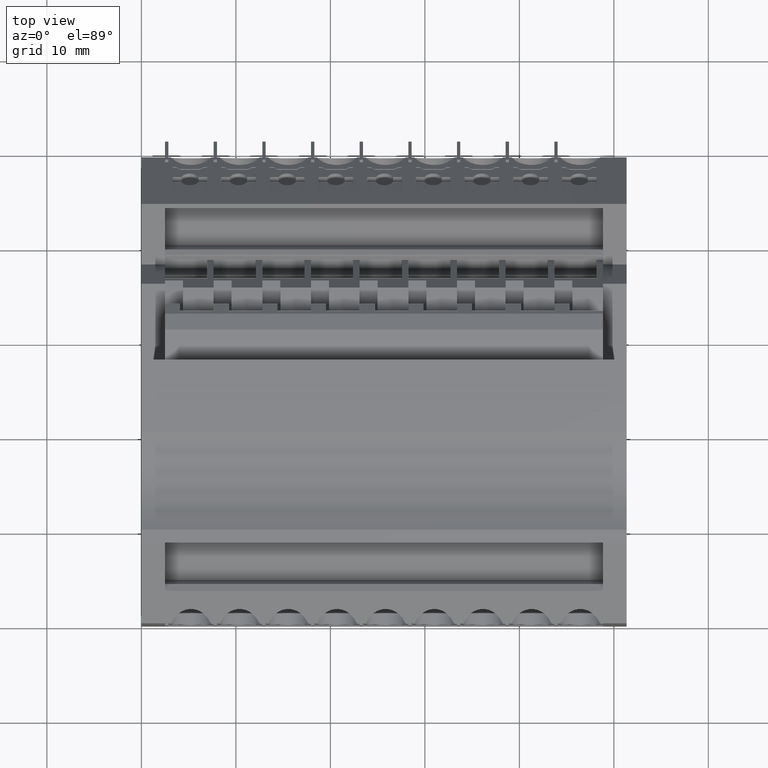
[diagram: clean part render]
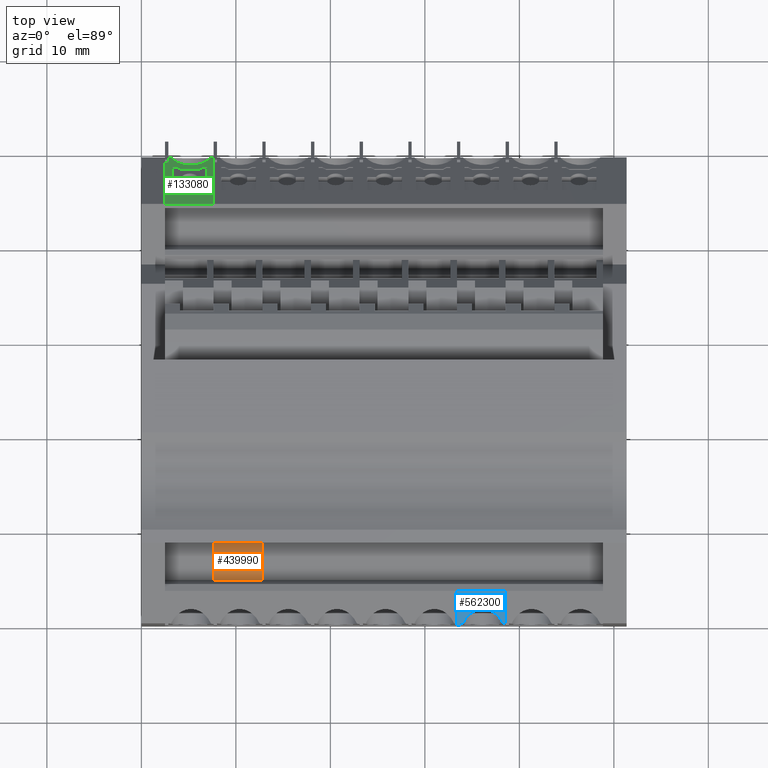
[diagram: same view with three faces highlighted in distinct colors, each labeled with its STEP entity id]
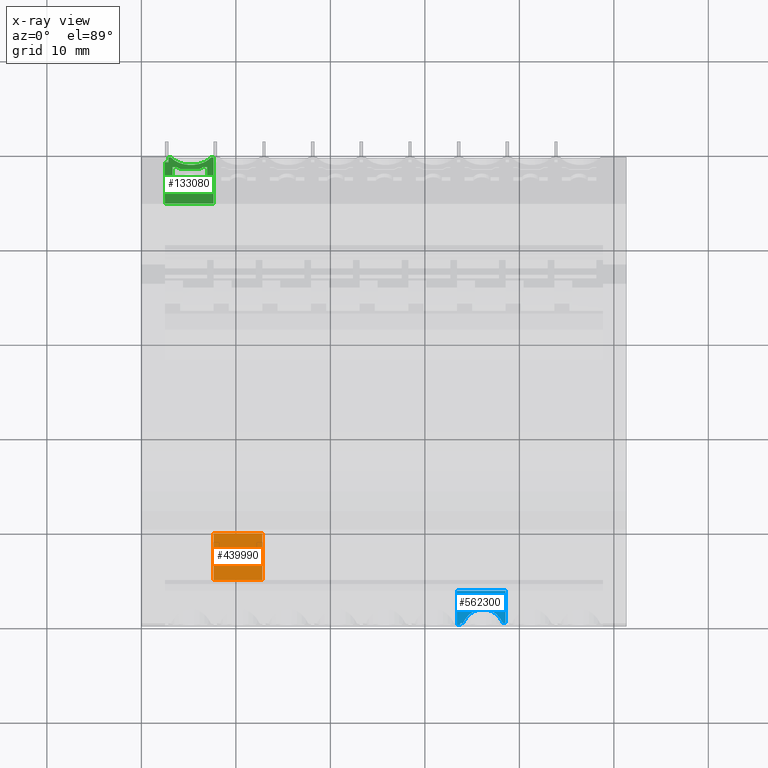
[diagram: x-ray of the same camera — body ghosted, the three highlighted faces saturated]
A machine part, top view with three faces highlighted in distinct colors.
The next image is the same camera in x-ray (body ghosted, the three faces saturated) — at least one of them is partly hidden behind the body in this view.
Their STEP definitions:

[orange] entity #439990 — the highlighted planar face has unit normal (-0, 0.6428, -0.766).
#57360=CARTESIAN_POINT('',(429.86212731812,696.188710113931,
85.2749975682599));
#57370=DIRECTION('',(0.642787609094791,-0.766044443615514,
2.68778616175774E-10));
#57380=DIRECTION('',(-0.766044443615514,-0.642787609094791,
4.43142362006131E-10));
#57390=AXIS2_PLACEMENT_3D('',#57360,#57370,#57380);
#57400=PLANE('',#57390);
#57410=CARTESIAN_POINT('',(425.016896212252,692.123078486407,
85.2749975710628));
#57420=DIRECTION('',(1.6669925506053E-10,4.90742847764455E-10,1.));
#57430=VECTOR('',#57420,1.);
#57440=LINE('',#57410,#57430);
#57590=CARTESIAN_POINT('',(429.86212731812,696.188710113931,
85.2749975682599));
#57600=DIRECTION('',(1.6669925506053E-10,4.90742847764455E-10,1.));
#57610=VECTOR('',#57600,1.);
#57620=LINE('',#57590,#57610);
#77810=CARTESIAN_POINT('',(429.862127316119,696.18871010804,
73.2699999848595));
#77820=VERTEX_POINT('',#77810);
#78240=CARTESIAN_POINT('',(425.016896210251,692.123078480515,
73.2699999876232));
#78250=VERTEX_POINT('',#78240);
#107680=CARTESIAN_POINT('',(425.016896211109,692.123078483043,
78.4199999876233));
#107690=VERTEX_POINT('',#107680);
#107720=CARTESIAN_POINT('',(419.450735291259,687.45251491545,
78.4199999907981));
#107730=DIRECTION('',(-0.766044443615514,-0.642787609094791,
4.36950297750633E-10));
#107740=VECTOR('',#107730,1.);
#107750=LINE('',#107720,#107740);
#107760=CARTESIAN_POINT('',(429.862127316978,696.188710110567,
78.4199999848595));
#107770=VERTEX_POINT('',#107760);
#107780=EDGE_CURVE('',#107770,#107690,#107750,.T.);
#131250=CARTESIAN_POINT('',(419.450735291008,687.452514913433,
73.2699999907982));
#131260=DIRECTION('',(-0.766044443615514,-0.642787609094791,
4.36950297750633E-10));
#131270=VECTOR('',#131260,1.);
#131280=LINE('',#131250,#131270);
#131290=EDGE_CURVE('',#77820,#78250,#131280,.T.);
#392960=EDGE_CURVE('',#77820,#107770,#57620,.T.);
#439920=EDGE_CURVE('',#78250,#107690,#57440,.T.);
#439930=ORIENTED_EDGE('',*,*,#439920,.T.);
#439940=ORIENTED_EDGE('',*,*,#131290,.T.);
#439950=ORIENTED_EDGE('',*,*,#392960,.F.);
#439960=ORIENTED_EDGE('',*,*,#107780,.F.);
#439970=EDGE_LOOP('',(#439960,#439950,#439940,#439930));
#439980=FACE_OUTER_BOUND('',#439970,.T.);
#439990=ADVANCED_FACE('',(#439980),#57400,.F.);

[blue] entity #562300 — the highlighted planar face has unit normal (-0, -0.6428, 0.766).
#23650=CARTESIAN_POINT('',(420.453158781506,690.486358046832,
99.0199999889429));
#23660=VERTEX_POINT('',#23650);
#80380=CARTESIAN_POINT('',(423.8508749517,693.337380410128,
88.71999998123));
#80390=DIRECTION('',(3.57317305807404E-11,5.38411128446248E-10,1.));
#80400=VECTOR('',#80390,1.);
#80410=LINE('',#80380,#80400);
#205300=CARTESIAN_POINT('',(423.850874952252,693.337380418446,
104.169999987005));
#205310=VERTEX_POINT('',#205300);
#205340=CARTESIAN_POINT('',(423.850874952068,693.337380415673,
99.0199999870048));
#205350=VERTEX_POINT('',#205340);
#205360=EDGE_CURVE('',#205350,#205310,#80410,.T.);
#212410=CARTESIAN_POINT('',(422.138206571203,691.900281005658,
73.2699999865796));
#212420=DIRECTION('',(-0.642787607836916,0.766044444670996,
-3.89478801783717E-10));
#212430=DIRECTION('',(0.766044444670996,0.642787607836916,
-4.25146305308343E-10));
#212440=AXIS2_PLACEMENT_3D('',#212410,#212420,#212430);
#212450=PLANE('',#212440);
#218160=CARTESIAN_POINT('',(420.453158781253,690.486358049238,
104.169999988943));
#218170=VERTEX_POINT('',#218160);
#218200=CARTESIAN_POINT('',(418.258461686124,688.6447885352,
104.169999990195));
#218210=DIRECTION('',(0.766044444670996,0.642787607836916,
-4.36950296813667E-10));
#218220=VECTOR('',#218210,1.);
#218230=LINE('',#218200,#218220);
#226030=EDGE_CURVE('',#218170,#205310,#218230,.T.);
#306980=CARTESIAN_POINT('',(420.253158784285,690.318538124487,
99.3699999790003));
#306990=VERTEX_POINT('',#306980);
#307020=CARTESIAN_POINT('',(418.258461685737,688.644788533473,
99.3699999796383));
#307030=DIRECTION('',(-0.76604444476172,-0.642787607728796,
2.45000771014581E-10));
#307040=VECTOR('',#307030,1.);
#307050=LINE('',#307020,#307040);
#307060=CARTESIAN_POINT('',(420.453158779868,690.486358046145,
99.3699999789363));
#307070=VERTEX_POINT('',#307060);
#307080=EDGE_CURVE('',#307070,#306990,#307050,.T.);
#353900=CARTESIAN_POINT('',(420.453158779363,690.486358048857,
103.875444735563));
#353910=VERTEX_POINT('',#353900);
#353940=CARTESIAN_POINT('',(420.453158779829,690.486358045935,
99.0199999823949));
#353950=DIRECTION('',(-1.11377720218254E-10,-6.01885650121683E-10,-1.));
#353960=VECTOR('',#353950,1.);
#353970=LINE('',#353940,#353960);
#353980=EDGE_CURVE('',#218170,#353910,#353970,.T.);
#427250=CARTESIAN_POINT('',(418.258461686315,688.644788532742,
99.0199999901948));
#427260=DIRECTION('',(0.766044444670996,0.642787607836916,
-4.36950296813667E-10));
#427270=VECTOR('',#427260,1.);
#427280=LINE('',#427250,#427270);
#427290=CARTESIAN_POINT('',(420.253158784317,690.318538124336,
99.0199999890569));
#427300=VERTEX_POINT('',#427290);
#427310=EDGE_CURVE('',#427300,#23660,#427280,.T.);
#512450=CARTESIAN_POINT('',(420.453158779594,690.486358046323,
99.6645552188706));
#512460=VERTEX_POINT('',#512450);
#512490=CARTESIAN_POINT('',(419.080259479938,689.33435875713,
101.769999977835));
#512500=DIRECTION('',(-0.642787607728796,0.76604444476172,
-3.89479239555093E-10));
#512510=DIRECTION('',(0.76604444476172,0.642787607728796,
-2.55276932474438E-10));
#512520=AXIS2_PLACEMENT_3D('',#512490,#512500,#512510);
#512530=ELLIPSE('',#512520,3.73373718971238,2.40000000000534);
#512540=EDGE_CURVE('',#353910,#512460,#512530,.T.);
#536910=EDGE_CURVE('',#23660,#205350,#427280,.T.);
#562130=ORIENTED_EDGE('',*,*,#205360,.F.);
#562140=ORIENTED_EDGE('',*,*,#226030,.T.);
#562150=ORIENTED_EDGE('',*,*,#353980,.F.);
#562160=ORIENTED_EDGE('',*,*,#512540,.F.);
#562170=EDGE_CURVE('',#512460,#307070,#353970,.T.);
#562180=ORIENTED_EDGE('',*,*,#562170,.F.);
#562190=ORIENTED_EDGE('',*,*,#307080,.F.);
#562200=CARTESIAN_POINT('',(420.253158784317,690.318538124336,
99.0199999824634));
#562210=DIRECTION('',(9.05318254705689E-11,-4.32463425682347E-10,-1.));
#562220=VECTOR('',#562210,1.);
#562230=LINE('',#562200,#562220);
#562240=EDGE_CURVE('',#306990,#427300,#562230,.T.);
#562250=ORIENTED_EDGE('',*,*,#562240,.F.);
#562260=ORIENTED_EDGE('',*,*,#427310,.F.);
#562270=ORIENTED_EDGE('',*,*,#536910,.F.);
#562280=EDGE_LOOP('',(#562270,#562260,#562250,#562190,#562180,#562160,
#562150,#562140,#562130));
#562290=FACE_OUTER_BOUND('',#562280,.T.);
#562300=ADVANCED_FACE('',(#562290),#212450,.T.);

[green] entity #133080 — the highlighted planar face has unit normal (-0, 0.766, 0.6428).
#10200=CARTESIAN_POINT('',(469.853158778639,686.448039185579,
68.1199999959026));
#10210=DIRECTION('',(1.66699254649708E-10,1.918782124309E-10,1.));
#10220=VECTOR('',#10210,1.);
#10230=LINE('',#10200,#10220);
#10240=CARTESIAN_POINT('',(469.853158778697,686.448039186222,
68.4699999824707));
#10250=VERTEX_POINT('',#10240);
#10260=CARTESIAN_POINT('',(469.853158778743,686.4480391857,
68.7472577237182));
#10270=VERTEX_POINT('',#10260);
#10280=EDGE_CURVE('',#10250,#10270,#10230,.T.);
#15740=CARTESIAN_POINT('',(469.853158782448,686.448039190721,
73.269999987393));
#15750=VERTEX_POINT('',#15740);
#15780=CARTESIAN_POINT('',(469.85315877818,686.448039186125,
68.1199999959026));
#15790=DIRECTION('',(9.53019264641259E-11,2.76966234926162E-10,1.));
#15800=VECTOR('',#15790,1.);
#15810=LINE('',#15780,#15800);
#15820=CARTESIAN_POINT('',(469.853158778645,686.448039187475,
72.9927422411771));
#15830=VERTEX_POINT('',#15820);
#15840=EDGE_CURVE('',#15830,#15750,#15810,.T.);
#19620=CARTESIAN_POINT('',(466.571603112913,690.35884494672,
71.4740249410919));
#19630=VERTEX_POINT('',#19620);
#19780=CARTESIAN_POINT('',(466.2823488394,690.703564767049,
71.9240247065237));
#19790=VERTEX_POINT('',#19780);
#19820=CARTESIAN_POINT('',(468.727528790394,687.789512770027,
68.1199999949033));
#19830=DIRECTION('',(0.454519477349067,-0.541675221128777,
-0.70710678085097));
#19840=VECTOR('',#19830,1.);
#19850=LINE('',#19820,#19840);
#19860=EDGE_CURVE('',#19790,#19630,#19850,.T.);
#47390=CARTESIAN_POINT('',(466.282348839329,690.703564767386,
72.5700004247088));
#47400=VERTEX_POINT('',#47390);
#47830=CARTESIAN_POINT('',(468.789220513856,687.715991438584,
72.5700004264913));
#47840=VERTEX_POINT('',#47830);
#47870=CARTESIAN_POINT('',(460.057092098218,698.122536864627,
72.5700004202823));
#47880=DIRECTION('',(-0.642787609117033,0.766044443596851,
-4.570555116598E-10));
#47890=VECTOR('',#47880,1.);
#47900=LINE('',#47870,#47890);
#47910=EDGE_CURVE('',#47840,#47400,#47900,.T.);
#131660=CARTESIAN_POINT('',(480.967221274263,673.202815271583,
73.2699999869654));
#131670=DIRECTION('',(0.766044443506127,0.642787609225153,
-6.26829308777775E-10));
#131680=DIRECTION('',(0.642787609225154,-0.766044443506128,
3.53694291000708E-10));
#131690=AXIS2_PLACEMENT_3D('',#131660,#131670,#131680);
#131700=PLANE('',#131690);
#131710=CARTESIAN_POINT('',(469.319520311842,687.08400474649,
68.1199999954288));
#131720=DIRECTION('',(-5.86570307982182E-11,4.60447375632641E-10,1.));
#131730=VECTOR('',#131720,1.);
#131740=LINE('',#131710,#131730);
#131750=CARTESIAN_POINT('',(469.319520315897,687.084004746136,
68.1199999870631));
#131760=VERTEX_POINT('',#131750);
#131770=CARTESIAN_POINT('',(469.319520311822,687.084004746652,
68.469999982205));
#131780=VERTEX_POINT('',#131770);
#131790=EDGE_CURVE('',#131760,#131780,#131740,.T.);
#131800=ORIENTED_EDGE('',*,*,#131790,.F.);
#131810=CARTESIAN_POINT('',(460.057092098931,698.122536862176,
68.4699999775921));
#131820=DIRECTION('',(0.642787609117033,-0.766044443596851,
3.2011394940328E-10));
#131830=VECTOR('',#131820,1.);
#131840=LINE('',#131810,#131830);
#131850=EDGE_CURVE('',#131780,#10250,#131840,.T.);
#131860=ORIENTED_EDGE('',*,*,#131850,.F.);
#131870=ORIENTED_EDGE('',*,*,#10280,.F.);
#131880=CARTESIAN_POINT('',(470.572956149995,685.590218082104,
70.869999982823));
#131890=DIRECTION('',(-0.766044443609541,-0.642787609101909,
4.36973645764363E-10));
#131900=DIRECTION('',(-0.642787609101909,0.766044443609542,
-3.23562025759873E-10));
#131910=AXIS2_PLACEMENT_3D('',#131880,#131890,#131900);
#131920=CIRCLE('',#131910,2.40000000000534);
#131930=EDGE_CURVE('',#15830,#10270,#131920,.T.);
#131940=ORIENTED_EDGE('',*,*,#131930,.T.);
#131950=ORIENTED_EDGE('',*,*,#15840,.F.);
#131960=CARTESIAN_POINT('',(460.05709210007,698.122536867018,
73.2699999813353));
#131970=DIRECTION('',(0.642787609225153,-0.766044443506128,
3.97483338039747E-10));
#131980=VECTOR('',#131970,1.);
#131990=LINE('',#131960,#131980);
#132000=CARTESIAN_POINT('',(469.319520310947,687.084004749615,
73.2699999870629));
#132010=VERTEX_POINT('',#132000);
#132020=EDGE_CURVE('',#132010,#15750,#131990,.T.);
#132030=ORIENTED_EDGE('',*,*,#132020,.T.);
#132040=CARTESIAN_POINT('',(460.05709210007,698.122536867018,
73.2699999813353));
#132050=DIRECTION('',(0.642787609225153,-0.766044443506128,
3.97483338039747E-10));
#132060=VECTOR('',#132050,1.);
#132070=LINE('',#132040,#132060);
#132080=CARTESIAN_POINT('',(464.820007044711,692.446315863579,
73.2699999842806));
#132090=VERTEX_POINT('',#132080);
#132100=EDGE_CURVE('',#132090,#132010,#132070,.T.);
#132110=ORIENTED_EDGE('',*,*,#132100,.T.);
#132120=CARTESIAN_POINT('',(464.820007045212,692.446315863434,
88.719999988555));
#132130=DIRECTION('',(-1.6947493584462E-11,4.10739884737656E-10,1.));
#132140=VECTOR('',#132130,1.);
#132150=LINE('',#132120,#132140);
#132160=CARTESIAN_POINT('',(464.820007043316,692.446315860219,
68.1199999842807));
#132170=VERTEX_POINT('',#132160);
#132180=EDGE_CURVE('',#132170,#132090,#132150,.T.);
#132190=ORIENTED_EDGE('',*,*,#132180,.T.);
#132200=CARTESIAN_POINT('',(460.057092099592,698.122536862566,
68.1199999813354));
#132210=DIRECTION('',(0.642787609225153,-0.766044443506128,
3.97483338039747E-10));
#132220=VECTOR('',#132210,1.);
#132230=LINE('',#132200,#132220);
#132240=EDGE_CURVE('',#132170,#131760,#132230,.T.);
#132250=ORIENTED_EDGE('',*,*,#132240,.F.);
#132260=EDGE_LOOP('',(#132250,#132190,#132110,#132030,#131950,#131940,
#131870,#131860,#131800));
#132270=FACE_OUTER_BOUND('',#132260,.T.);
#132280=CARTESIAN_POINT('',(466.28234883982,690.703564765063,
68.1199999927327));
#132290=DIRECTION('',(1.10339279182462E-10,-5.22039880910903E-10,-1.));
#132300=VECTOR('',#132290,1.);
#132310=LINE('',#132280,#132300);
#132320=EDGE_CURVE('',#47400,#19790,#132310,.T.);
#132330=ORIENTED_EDGE('',*,*,#132320,.T.);
#132340=ORIENTED_EDGE('',*,*,#47910,.T.);
#132350=CARTESIAN_POINT('',(468.789220515034,687.715991435443,
68.119999994958));
#132360=DIRECTION('',(-2.64576927816554E-10,7.05853153061389E-10,1.));
#132370=VECTOR('',#132360,1.);
#132380=LINE('',#132350,#132370);
#132390=CARTESIAN_POINT('',(468.789220513966,687.715991438291,
72.1539010003411));
#132400=VERTEX_POINT('',#132390);
#132410=EDGE_CURVE('',#132400,#47840,#132380,.T.);
#132420=ORIENTED_EDGE('',*,*,#132410,.T.);
#132430=CARTESIAN_POINT('',(466.613484188647,690.308933022867,
68.1199999930267));
#132440=DIRECTION('',(0.413175910705188,-0.492403876400557,
0.766044443435656));
#132450=VECTOR('',#132440,1.);
#132460=LINE('',#132430,#132450);
#132470=CARTESIAN_POINT('',(468.596384251853,687.945804746654,
71.7963749605662));
#132480=VERTEX_POINT('',#132470);
#132490=EDGE_CURVE('',#132480,#132400,#132460,.T.);
#132500=ORIENTED_EDGE('',*,*,#132490,.T.);
#132510=CARTESIAN_POINT('',(468.596384252204,687.9458047448,
68.1199999947869));
#132520=DIRECTION('',(-9.53799141692885E-11,5.04212003886608E-10,1.));
#132530=VECTOR('',#132520,1.);
#132540=LINE('',#132510,#132530);
#132550=CARTESIAN_POINT('',(468.596384252054,687.945804745594,
69.6936245479594));
#132560=VERTEX_POINT('',#132550);
#132570=EDGE_CURVE('',#132560,#132480,#132540,.T.);
#132580=ORIENTED_EDGE('',*,*,#132570,.T.);
#132590=CARTESIAN_POINT('',(469.445138869312,686.934298379103,
68.1199999955403));
#132600=DIRECTION('',(-0.413175910895737,0.49240387722599,
0.766044442802303));
#132610=VECTOR('',#132600,1.);
#132620=LINE('',#132590,#132610);
#132630=CARTESIAN_POINT('',(468.789220514187,687.715991436927,
69.3360985086074));
#132640=VERTEX_POINT('',#132630);
#132650=EDGE_CURVE('',#132640,#132560,#132620,.T.);
#132660=ORIENTED_EDGE('',*,*,#132650,.T.);
#132670=CARTESIAN_POINT('',(468.789220514301,687.715991436316,
68.119999994958));
#132680=DIRECTION('',(-9.36638245300198E-11,5.02166847890709E-10,1.));
#132690=VECTOR('',#132680,1.);
#132700=LINE('',#132670,#132690);
#132710=CARTESIAN_POINT('',(468.789220514226,687.715991436718,
68.9199999548478));
#132720=VERTEX_POINT('',#132710);
#132730=EDGE_CURVE('',#132720,#132640,#132700,.T.);
#132740=ORIENTED_EDGE('',*,*,#132730,.T.);
#132750=CARTESIAN_POINT('',(460.057092098853,698.122536862445,
68.919999948804));
#132760=DIRECTION('',(0.642787609117033,-0.766044443596851,
4.44888334671647E-10));
#132770=VECTOR('',#132760,1.);
#132780=LINE('',#132750,#132770);
#132790=CARTESIAN_POINT('',(466.282348839733,690.703564765478,
68.9199999531128));
#132800=VERTEX_POINT('',#132790);
#132810=EDGE_CURVE('',#132800,#132720,#132780,.T.);
#132820=ORIENTED_EDGE('',*,*,#132810,.T.);
#132830=CARTESIAN_POINT('',(466.282348839822,690.703564765061,
68.1199999927327));
#132840=DIRECTION('',(1.10339279182462E-10,-5.22039880910903E-10,-1.));
#132850=VECTOR('',#132840,1.);
#132860=LINE('',#132830,#132850);
#132870=CARTESIAN_POINT('',(466.282348839662,690.703564765816,
69.5659762557981));
#132880=VERTEX_POINT('',#132870);
#132890=EDGE_CURVE('',#132880,#132800,#132860,.T.);
#132900=ORIENTED_EDGE('',*,*,#132890,.T.);
#132910=CARTESIAN_POINT('',(465.352893214767,691.811246847049,
68.1199999919076));
#132920=DIRECTION('',(-0.454519477187463,0.541675220383874,
-0.707106781525476));
#132930=VECTOR('',#132920,1.);
#132940=LINE('',#132910,#132930);
#132950=CARTESIAN_POINT('',(466.571603113098,690.35884494593,
70.0159760217022));
#132960=VERTEX_POINT('',#132950);
#132970=EDGE_CURVE('',#132960,#132880,#132940,.T.);
#132980=ORIENTED_EDGE('',*,*,#132970,.T.);
#132990=CARTESIAN_POINT('',(466.571603113339,690.358844944902,
68.1199999929894));
#133000=DIRECTION('',(1.26972147129217E-10,-5.41862161071521E-10,-1.));
#133010=VECTOR('',#133000,1.);
#133020=LINE('',#132990,#133010);
#133030=EDGE_CURVE('',#19630,#132960,#133020,.T.);
#133040=ORIENTED_EDGE('',*,*,#133030,.T.);
#133050=ORIENTED_EDGE('',*,*,#19860,.T.);
#133060=EDGE_LOOP('',(#133050,#133040,#132980,#132900,#132820,#132740,
#132660,#132580,#132500,#132420,#132340,#132330));
#133070=FACE_BOUND('',#133060,.T.);
#133080=ADVANCED_FACE('',(#132270,#133070),#131700,.T.);